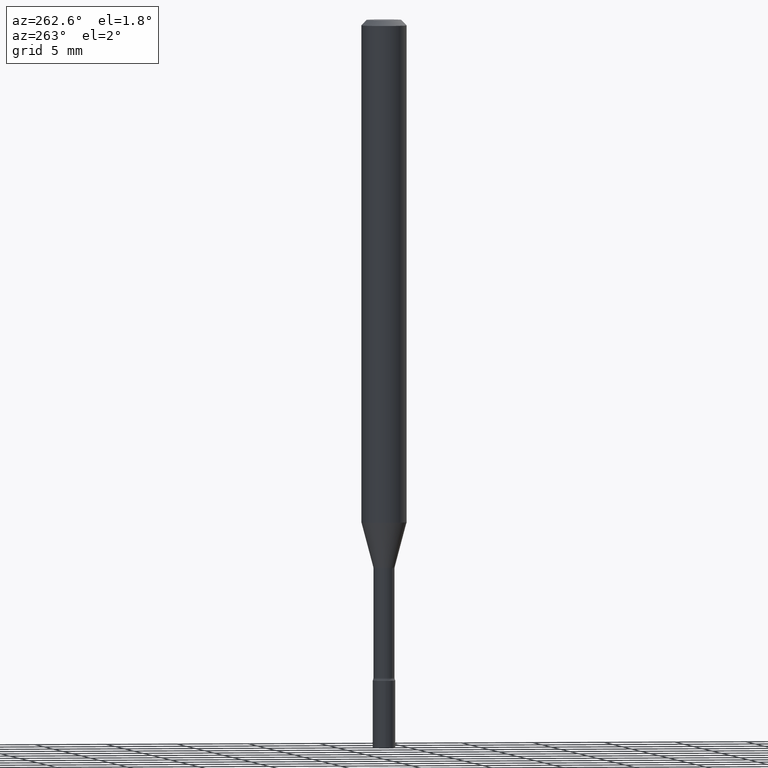
[diagram: clean part render]
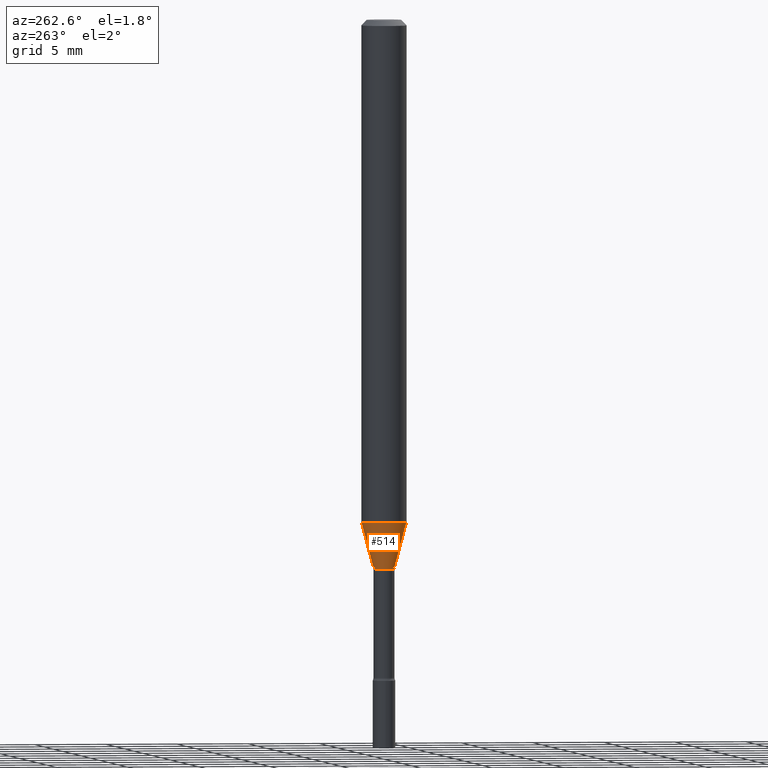
[diagram: same view with one face highlighted and labeled with its STEP entity id]
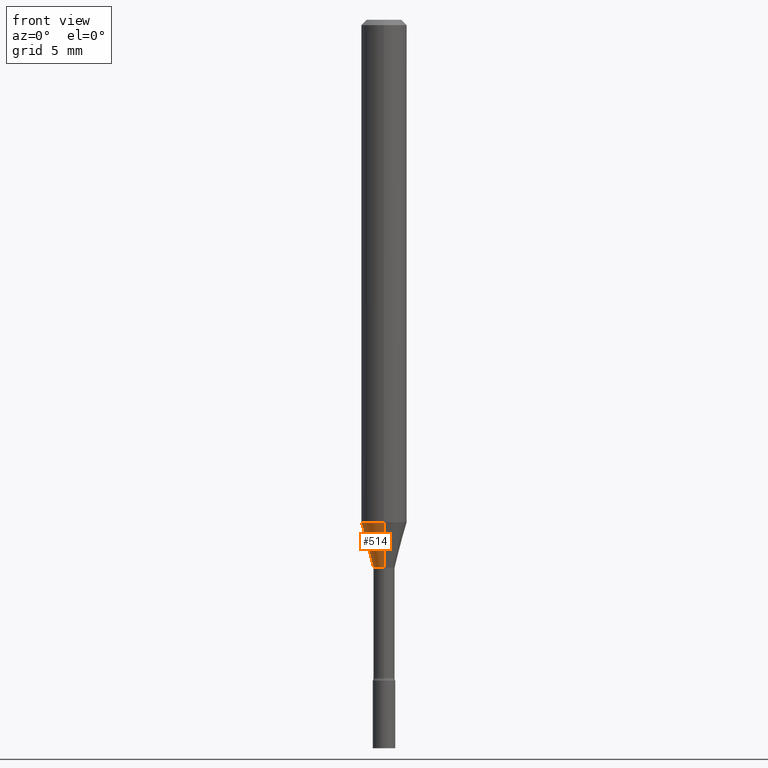
[diagram: same view with one face highlighted and labeled with its STEP entity id]
A machine part, auxiliary view. The second image highlights one B-rep face of the part: STEP entity #514.
A second angle (front view) of the same face is appended — the face is thin or edge-on in the first view.
In plain terms, the highlighted conical surface has half-angle 15 deg.
Its self-contained STEP definition (entity closure, byte-faithful):
#5 = EDGE_CURVE ( 'NONE', #150, #216, #368, .T. ) ;
#19 = AXIS2_PLACEMENT_3D ( 'NONE', #476, #253, #396 ) ;
#20 = EDGE_LOOP ( 'NONE', ( #358, #472, #225, #95 ) ) ;
#22 = CARTESIAN_POINT ( 'NONE',  ( -2.071224423039644956E-16, -0.02966111260566922994, -1.502092501787273271 ) ) ;
#32 = CARTESIAN_POINT ( 'NONE',  ( 3.673319952389542966E-29, -5.244528518811216115E-15, -1.502092501787273271 ) ) ;
#57 = AXIS2_PLACEMENT_3D ( 'NONE', #459, #255, #125 ) ;
#61 = DIRECTION ( 'NONE',  ( -2.445468536737133447E-29, 3.491481724708021844E-15, 1.000000000000000000 ) ) ;
#76 = AXIS2_PLACEMENT_3D ( 'NONE', #32, #61, #336 ) ;
#92 = CARTESIAN_POINT ( 'NONE',  ( -4.364351673553580935E-16, -0.06250000000000484335, -1.379536105567578108 ) ) ;
#95 = ORIENTED_EDGE ( 'NONE', *, *, #270, .F. ) ;
#104 = EDGE_CURVE ( 'NONE', #413, #150, #160, .T. ) ;
#125 = DIRECTION ( 'NONE',  ( -6.982962677686265922E-15, -1.000000000000000000, 4.370956789862821150E-15 ) ) ;
#139 = CARTESIAN_POINT ( 'NONE',  ( 4.440892098500961428E-16, 0.06249999999999514971, -1.379536105567578552 ) ) ;
#140 = DIRECTION ( 'NONE',  ( -1.807323732225328562E-15, -0.2588190451025179639, 0.9659258262890690894 ) ) ;
#150 = VERTEX_POINT ( 'NONE', #294 ) ;
#160 = CIRCLE ( 'NONE', #19, 0.02966111260566398414 ) ;
#216 = VERTEX_POINT ( 'NONE', #92 ) ;
#225 = ORIENTED_EDGE ( 'NONE', *, *, #5, .T. ) ;
#227 = LINE ( 'NONE', #229, #430 ) ;
#229 = CARTESIAN_POINT ( 'NONE',  ( 2.107548809652055165E-16, 0.02966111260565873833, -1.502092501787273271 ) ) ;
#249 = CIRCLE ( 'NONE', #57, 0.06250000000000000000 ) ;
#253 = DIRECTION ( 'NONE',  ( -2.445468536737133447E-29, 3.491481724708021844E-15, 1.000000000000000000 ) ) ;
#255 = DIRECTION ( 'NONE',  ( -2.445468536737133447E-29, 3.491481724708021844E-15, 1.000000000000000000 ) ) ;
#266 = CARTESIAN_POINT ( 'NONE',  ( 3.274220454076509529E-16, 0.02966111260565873833, -1.502092501787273271 ) ) ;
#270 = EDGE_CURVE ( 'NONE', #468, #216, #249, .T. ) ;
#272 = DIRECTION ( 'NONE',  ( 1.839019923739598738E-15, 0.2588190451025247363, 0.9659258262890673130 ) ) ;
#294 = CARTESIAN_POINT ( 'NONE',  ( -2.071224423039644956E-16, -0.02966111260566922994, -1.502092501787273271 ) ) ;
#336 = DIRECTION ( 'NONE',  ( -6.982962677686265922E-15, -1.000000000000000000, 0.000000000000000000 ) ) ;
#358 = ORIENTED_EDGE ( 'NONE', *, *, #416, .F. ) ;
#368 = LINE ( 'NONE', #22, #429 ) ;
#395 = FACE_OUTER_BOUND ( 'NONE', #20, .T. ) ;
#396 = DIRECTION ( 'NONE',  ( -6.982962677686265922E-15, -1.000000000000000000, 0.000000000000000000 ) ) ;
#413 = VERTEX_POINT ( 'NONE', #266 ) ;
#416 = EDGE_CURVE ( 'NONE', #413, #468, #227, .T. ) ;
#429 = VECTOR ( 'NONE', #140, 39.37007874015748854 ) ;
#430 = VECTOR ( 'NONE', #272, 39.37007874015748854 ) ;
#459 = CARTESIAN_POINT ( 'NONE',  ( 3.373612141458389252E-29, -4.816625101164076707E-15, -1.379536105567578330 ) ) ;
#468 = VERTEX_POINT ( 'NONE', #139 ) ;
#472 = ORIENTED_EDGE ( 'NONE', *, *, #104, .T. ) ;
#476 = CARTESIAN_POINT ( 'NONE',  ( 3.673319952389542966E-29, -5.244528518811216115E-15, -1.502092501787273271 ) ) ;
#481 = CONICAL_SURFACE ( 'NONE', #76, 0.02966111260566398414, 0.2617993877991500740 ) ;
#514 = ADVANCED_FACE ( 'NONE', ( #395 ), #481, .T. ) ;